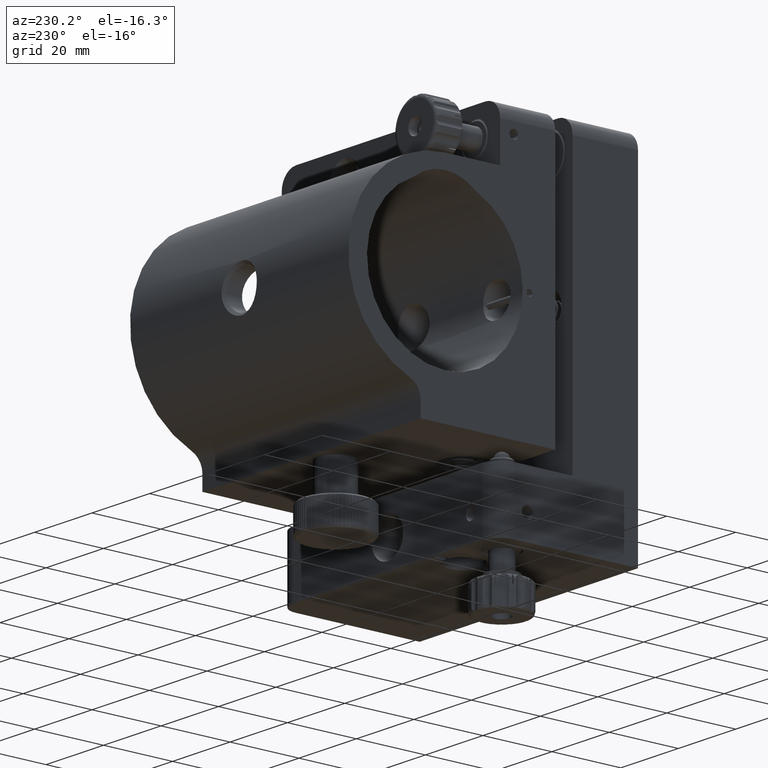
[diagram: clean part render]
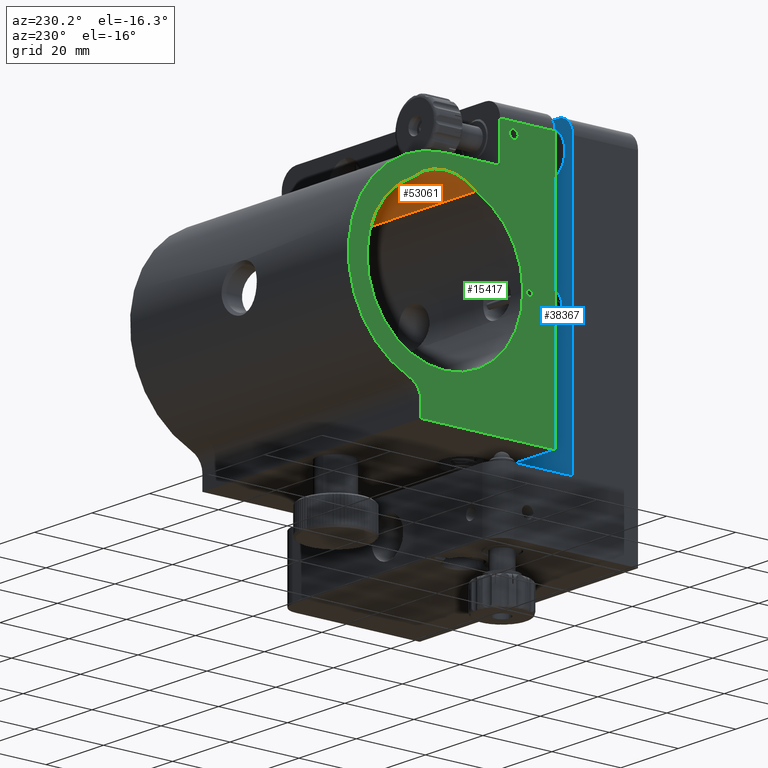
[diagram: same view with three faces highlighted in distinct colors, each labeled with its STEP entity id]
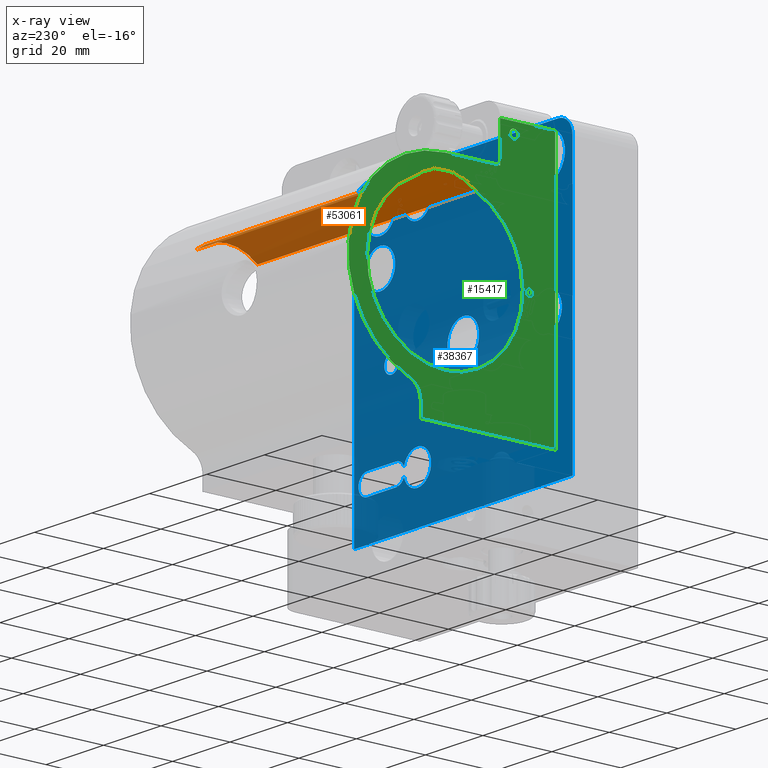
[diagram: x-ray of the same camera — body ghosted, the three highlighted faces saturated]
A machine part, auxiliary view with three faces highlighted in distinct colors.
The next image is the same camera in x-ray (body ghosted, the three faces saturated) — at least one of them is partly hidden behind the body in this view.
Their STEP definitions:

[orange] entity #53061 — the highlighted cylindrical surface (partial cylindrical patch) has radius 14 mm, axis along (1, -0, -0).
#983 = CARTESIAN_POINT ( 'NONE',  ( -250.0000000000000000, 55.99999999999979400, 9.999999999999904100 ) ) ;
#1565 = CARTESIAN_POINT ( 'NONE',  ( -38.00000000000000000, 55.99999999999979400, 9.999999999999904100 ) ) ;
#2195 = CARTESIAN_POINT ( 'NONE',  ( 37.99999999999998600, 47.01694061023731300, 20.73799999999990700 ) ) ;
#2232 = CARTESIAN_POINT ( 'NONE',  ( -38.00000000000000000, 47.01694061023731300, 20.73799999999990700 ) ) ;
#2624 = AXIS2_PLACEMENT_3D ( 'NONE', #983, #31026, #22587 ) ;
#4763 = EDGE_LOOP ( 'NONE', ( #18377, #13733, #22789, #34149 ) ) ;
#7317 = CARTESIAN_POINT ( 'NONE',  ( -250.0000000000000000, 47.01694061023731300, 20.73799999999990700 ) ) ;
#10224 = DIRECTION ( 'NONE',  ( 0.0000000000000000000, 0.0000000000000000000, -1.000000000000000000 ) ) ;
#12890 = EDGE_CURVE ( 'NONE', #17415, #15541, #49353, .T. ) ;
#13123 = FACE_OUTER_BOUND ( 'NONE', #4763, .T. ) ;
#13415 = LINE ( 'NONE', #7317, #52961 ) ;
#13499 = DIRECTION ( 'NONE',  ( 1.000000000000000000, -0.0000000000000000000, -0.0000000000000000000 ) ) ;
#13678 = DIRECTION ( 'NONE',  ( 1.000000000000000000, 0.0000000000000000000, 0.0000000000000000000 ) ) ;
#13733 = ORIENTED_EDGE ( 'NONE', *, *, #47027, .F. ) ;
#15075 = CARTESIAN_POINT ( 'NONE',  ( 37.99999999999998600, 64.98305938976226100, 20.73799999999991100 ) ) ;
#15500 = VERTEX_POINT ( 'NONE', #2232 ) ;
#15541 = VERTEX_POINT ( 'NONE', #15075 ) ;
#17415 = VERTEX_POINT ( 'NONE', #45102 ) ;
#17871 = VECTOR ( 'NONE', #13499, 1000.000000000000000 ) ;
#18377 = ORIENTED_EDGE ( 'NONE', *, *, #27845, .T. ) ;
#22587 = DIRECTION ( 'NONE',  ( 0.0000000000000000000, 0.0000000000000000000, -1.000000000000000000 ) ) ;
#22789 = ORIENTED_EDGE ( 'NONE', *, *, #45143, .F. ) ;
#27845 = EDGE_CURVE ( 'NONE', #15541, #30666, #55019, .T. ) ;
#29134 = AXIS2_PLACEMENT_3D ( 'NONE', #1565, #35743, #10224 ) ;
#30666 = VERTEX_POINT ( 'NONE', #2195 ) ;
#31026 = DIRECTION ( 'NONE',  ( 1.000000000000000000, -0.0000000000000000000, -0.0000000000000000000 ) ) ;
#34149 = ORIENTED_EDGE ( 'NONE', *, *, #12890, .T. ) ;
#34888 = CARTESIAN_POINT ( 'NONE',  ( -250.0000000000000000, 64.98305938976226100, 20.73799999999991100 ) ) ;
#35249 = CARTESIAN_POINT ( 'NONE',  ( 37.99999999999998600, 55.99999999999979400, 9.999999999999904100 ) ) ;
#35280 = CYLINDRICAL_SURFACE ( 'NONE', #2624, 13.99999999999999500 ) ;
#35743 = DIRECTION ( 'NONE',  ( 1.000000000000000000, 0.0000000000000000000, 0.0000000000000000000 ) ) ;
#43667 = DIRECTION ( 'NONE',  ( 0.0000000000000000000, 0.0000000000000000000, -1.000000000000000000 ) ) ;
#45102 = CARTESIAN_POINT ( 'NONE',  ( -38.00000000000000000, 64.98305938976226100, 20.73799999999991100 ) ) ;
#45143 = EDGE_CURVE ( 'NONE', #17415, #15500, #49023, .T. ) ;
#46520 = DIRECTION ( 'NONE',  ( 1.000000000000000000, -0.0000000000000000000, -0.0000000000000000000 ) ) ;
#47027 = EDGE_CURVE ( 'NONE', #15500, #30666, #13415, .T. ) ;
#49023 = CIRCLE ( 'NONE', #29134, 13.99999999999999500 ) ;
#49353 = LINE ( 'NONE', #34888, #17871 ) ;
#52961 = VECTOR ( 'NONE', #46520, 1000.000000000000000 ) ;
#53061 = ADVANCED_FACE ( 'NONE', ( #13123 ), #35280, .F. ) ;
#53588 = AXIS2_PLACEMENT_3D ( 'NONE', #35249, #13678, #43667 ) ;
#55019 = CIRCLE ( 'NONE', #53588, 13.99999999999999500 ) ;

[blue] entity #38367 — the highlighted planar face has unit normal (0, -1, 0).
#1 = ORIENTED_EDGE ( 'NONE', *, *, #52454, .T. ) ;
#153 = EDGE_CURVE ( 'NONE', #41810, #35262, #6286, .T. ) ;
#467 = DIRECTION ( 'NONE',  ( 0.0000000000000000000, 0.0000000000000000000, -1.000000000000000000 ) ) ;
#489 = CIRCLE ( 'NONE', #19934, 5.300000000000002500 ) ;
#613 = EDGE_CURVE ( 'NONE', #53217, #777, #20358, .T. ) ;
#739 = DIRECTION ( 'NONE',  ( 0.0000000000000000000, 1.000000000000000000, -1.662010515905923500E-016 ) ) ;
#777 = VERTEX_POINT ( 'NONE', #11529 ) ;
#1326 = CARTESIAN_POINT ( 'NONE',  ( 25.00000000000000000, 19.00000000000000000, -1.134864539286368100E-014 ) ) ;
#1417 = CARTESIAN_POINT ( 'NONE',  ( -28.99999999999999600, 19.00000000000000700, 29.64999999999999500 ) ) ;
#1643 = EDGE_LOOP ( 'NONE', ( #49699, #48700, #29062, #43007, #31970, #49689, #2984, #42280 ) ) ;
#1961 = DIRECTION ( 'NONE',  ( 0.0000000000000000000, 0.0000000000000000000, 1.000000000000000000 ) ) ;
#2147 = ORIENTED_EDGE ( 'NONE', *, *, #51315, .F. ) ;
#2741 = CARTESIAN_POINT ( 'NONE',  ( 29.00000000000000700, 19.00000000000000700, 41.45435605731786000 ) ) ;
#2984 = ORIENTED_EDGE ( 'NONE', *, *, #40047, .F. ) ;
#3092 = VECTOR ( 'NONE', #37724, 1000.000000000000000 ) ;
#3188 = CARTESIAN_POINT ( 'NONE',  ( 38.00000000000000000, 18.99999999999999600, -40.10000000000000100 ) ) ;
#3213 = CIRCLE ( 'NONE', #44315, 5.299999999999999800 ) ;
#3500 = VERTEX_POINT ( 'NONE', #40408 ) ;
#3893 = DIRECTION ( 'NONE',  ( 0.0000000000000000000, 0.0000000000000000000, -1.000000000000000000 ) ) ;
#4257 = VERTEX_POINT ( 'NONE', #19608 ) ;
#4621 = CARTESIAN_POINT ( 'NONE',  ( 15.99999999999982100, 18.99999999999999600, -26.00000000000011700 ) ) ;
#4635 = DIRECTION ( 'NONE',  ( 0.0000000000000000000, 0.0000000000000000000, -1.000000000000000000 ) ) ;
#5157 = CARTESIAN_POINT ( 'NONE',  ( 38.00000000000000000, 18.99999999999999600, -40.10000000000000100 ) ) ;
#5182 = DIRECTION ( 'NONE',  ( 0.0000000000000000000, 0.0000000000000000000, -1.000000000000000000 ) ) ;
#5273 = EDGE_CURVE ( 'NONE', #21511, #26277, #44255, .T. ) ;
#5341 = DIRECTION ( 'NONE',  ( -0.0000000000000000000, 1.000000000000000000, -1.662010515905923500E-016 ) ) ;
#5508 = CARTESIAN_POINT ( 'NONE',  ( 29.00000000000000700, 19.00000000000000700, 36.00000000000000000 ) ) ;
#6104 = AXIS2_PLACEMENT_3D ( 'NONE', #21625, #25368, #51029 ) ;
#6207 = EDGE_CURVE ( 'NONE', #27308, #27869, #20680, .T. ) ;
#6286 = CIRCLE ( 'NONE', #9754, 4.999999999999997300 ) ;
#6546 = ORIENTED_EDGE ( 'NONE', *, *, #13086, .T. ) ;
#6751 = EDGE_CURVE ( 'NONE', #21018, #32807, #3213, .T. ) ;
#6873 = DIRECTION ( 'NONE',  ( 0.0000000000000000000, 0.0000000000000000000, -1.000000000000000000 ) ) ;
#7184 = CARTESIAN_POINT ( 'NONE',  ( -38.00000000000000000, 18.99999999999999600, -40.10000000000000100 ) ) ;
#7224 = ORIENTED_EDGE ( 'NONE', *, *, #13948, .F. ) ;
#7258 = CARTESIAN_POINT ( 'NONE',  ( -38.00000000000000000, 19.00000000000000700, 38.99999999999997200 ) ) ;
#7432 = DIRECTION ( 'NONE',  ( -0.0000000000000000000, 1.000000000000000000, -1.237614846119006200E-016 ) ) ;
#7461 = DIRECTION ( 'NONE',  ( 0.0000000000000000000, 1.000000000000000000, -1.662010515905923500E-016 ) ) ;
#7691 = EDGE_LOOP ( 'NONE', ( #51715, #45454 ) ) ;
#8007 = CARTESIAN_POINT ( 'NONE',  ( 23.39999999999999900, 18.99999999999999600, -23.00000000000011700 ) ) ;
#8052 = DIRECTION ( 'NONE',  ( 0.0000000000000000000, 1.000000000000000000, -1.662010515905923500E-016 ) ) ;
#8059 = ORIENTED_EDGE ( 'NONE', *, *, #52265, .F. ) ;
#8205 = DIRECTION ( 'NONE',  ( 1.000000000000000000, 0.0000000000000000000, -3.435095992033281000E-016 ) ) ;
#8335 = EDGE_LOOP ( 'NONE', ( #17985, #20875 ) ) ;
#9393 = DIRECTION ( 'NONE',  ( 0.0000000000000000000, 0.0000000000000000000, 1.000000000000000000 ) ) ;
#9489 = DIRECTION ( 'NONE',  ( 0.0000000000000000000, -1.000000000000000000, 1.237614846119006200E-016 ) ) ;
#9754 = AXIS2_PLACEMENT_3D ( 'NONE', #24186, #7432, #6873 ) ;
#10064 = AXIS2_PLACEMENT_3D ( 'NONE', #15412, #28000, #36632 ) ;
#10263 = EDGE_CURVE ( 'NONE', #26277, #21511, #54129, .T. ) ;
#10619 = EDGE_LOOP ( 'NONE', ( #11715, #24751 ) ) ;
#11319 = ORIENTED_EDGE ( 'NONE', *, *, #15669, .T. ) ;
#11518 = DIRECTION ( 'NONE',  ( 0.0000000000000000000, 0.0000000000000000000, 1.000000000000000000 ) ) ;
#11529 = CARTESIAN_POINT ( 'NONE',  ( -15.99999999999975100, 19.00000000000000700, 31.20000000000011700 ) ) ;
#11646 = DIRECTION ( 'NONE',  ( 0.0000000000000000000, 0.0000000000000000000, 1.000000000000000000 ) ) ;
#11668 = CARTESIAN_POINT ( 'NONE',  ( 0.0000000000000000000, 19.00000000000000000, 5.499999999999992000 ) ) ;
#11715 = ORIENTED_EDGE ( 'NONE', *, *, #13426, .F. ) ;
#11791 = CIRCLE ( 'NONE', #33488, 2.499999999999988500 ) ;
#11885 = CIRCLE ( 'NONE', #53978, 4.799999999999998900 ) ;
#11962 = AXIS2_PLACEMENT_3D ( 'NONE', #28953, #37207, #11518 ) ;
#12198 = DIRECTION ( 'NONE',  ( 0.0000000000000000000, 1.000000000000000000, -1.662010515905923500E-016 ) ) ;
#12219 = VECTOR ( 'NONE', #12726, 1000.000000000000000 ) ;
#12352 = FACE_BOUND ( 'NONE', #33936, .T. ) ;
#12355 = CARTESIAN_POINT ( 'NONE',  ( 16.00000000000024900, 19.00000000000000700, 40.79999999999989100 ) ) ;
#12422 = VERTEX_POINT ( 'NONE', #20075 ) ;
#12726 = DIRECTION ( 'NONE',  ( -1.000000000000000000, -0.0000000000000000000, 3.435095992033281000E-016 ) ) ;
#12902 = DIRECTION ( 'NONE',  ( 0.0000000000000000000, -1.237614846119006200E-016, -1.000000000000000000 ) ) ;
#13027 = FACE_BOUND ( 'NONE', #10619, .T. ) ;
#13086 = EDGE_CURVE ( 'NONE', #30221, #41810, #21142, .T. ) ;
#13323 = DIRECTION ( 'NONE',  ( 0.0000000000000000000, 0.0000000000000000000, -1.000000000000000000 ) ) ;
#13426 = EDGE_CURVE ( 'NONE', #27869, #27308, #11791, .T. ) ;
#13672 = ORIENTED_EDGE ( 'NONE', *, *, #10263, .T. ) ;
#13937 = DIRECTION ( 'NONE',  ( -0.0000000000000000000, 1.000000000000000000, -1.662010515905923500E-016 ) ) ;
#13948 = EDGE_CURVE ( 'NONE', #45822, #35262, #23908, .T. ) ;
#14941 = EDGE_CURVE ( 'NONE', #777, #53217, #33270, .T. ) ;
#15412 = CARTESIAN_POINT ( 'NONE',  ( 23.39999999999999900, 18.99999999999999600, -26.00000000000011700 ) ) ;
#15669 = EDGE_CURVE ( 'NONE', #45822, #39390, #53300, .T. ) ;
#15783 = CIRCLE ( 'NONE', #23973, 5.300000000000002500 ) ;
#16068 = AXIS2_PLACEMENT_3D ( 'NONE', #42382, #8052, #33594 ) ;
#16508 = ORIENTED_EDGE ( 'NONE', *, *, #17398, .F. ) ;
#16520 = DIRECTION ( 'NONE',  ( 0.0000000000000000000, -1.000000000000000000, 1.237614846119006200E-016 ) ) ;
#16855 = CARTESIAN_POINT ( 'NONE',  ( 23.39999999999999900, 18.99999999999999600, -26.00000000000011700 ) ) ;
#17048 = FACE_OUTER_BOUND ( 'NONE', #50556, .T. ) ;
#17219 = VECTOR ( 'NONE', #8205, 1000.000000000000000 ) ;
#17398 = EDGE_CURVE ( 'NONE', #37107, #34237, #26415, .T. ) ;
#17985 = ORIENTED_EDGE ( 'NONE', *, *, #39087, .F. ) ;
#18098 = EDGE_LOOP ( 'NONE', ( #39924, #2147 ) ) ;
#18172 = CARTESIAN_POINT ( 'NONE',  ( 33.50000000000000000, 18.99999999999999600, -23.00000000000012100 ) ) ;
#18184 = VERTEX_POINT ( 'NONE', #24065 ) ;
#19009 = DIRECTION ( 'NONE',  ( 0.0000000000000000000, 0.0000000000000000000, 1.000000000000000000 ) ) ;
#19608 = CARTESIAN_POINT ( 'NONE',  ( 16.00000000000024900, 19.00000000000000700, 31.19999999999989600 ) ) ;
#19767 = CIRCLE ( 'NONE', #50427, 2.999999999999999100 ) ;
#19934 = AXIS2_PLACEMENT_3D ( 'NONE', #22055, #39472, #467 ) ;
#20075 = CARTESIAN_POINT ( 'NONE',  ( 23.39999999999999900, 18.99999999999999600, -29.00000000000011700 ) ) ;
#20167 = AXIS2_PLACEMENT_3D ( 'NONE', #50968, #7461, #11646 ) ;
#20358 = CIRCLE ( 'NONE', #33089, 4.799999999999998900 ) ;
#20680 = CIRCLE ( 'NONE', #50047, 2.499999999999988500 ) ;
#20776 = DIRECTION ( 'NONE',  ( 0.0000000000000000000, 0.0000000000000000000, 1.000000000000000000 ) ) ;
#20875 = ORIENTED_EDGE ( 'NONE', *, *, #52888, .F. ) ;
#20968 = AXIS2_PLACEMENT_3D ( 'NONE', #42275, #30122, #34448 ) ;
#21018 = VERTEX_POINT ( 'NONE', #37062 ) ;
#21142 = LINE ( 'NONE', #44524, #23846 ) ;
#21206 = VECTOR ( 'NONE', #27162, 1000.000000000000000 ) ;
#21331 = PLANE ( 'NONE',  #54483 ) ;
#21511 = VERTEX_POINT ( 'NONE', #2741 ) ;
#21625 = CARTESIAN_POINT ( 'NONE',  ( 33.00000000000000000, 19.00000000000000700, 39.00000000000000000 ) ) ;
#21736 = FACE_BOUND ( 'NONE', #54648, .T. ) ;
#21995 = CARTESIAN_POINT ( 'NONE',  ( 33.00000000000000000, 19.00000000000000700, 44.00000000000000000 ) ) ;
#22055 = CARTESIAN_POINT ( 'NONE',  ( 29.00000000000016000, 19.00000000000000400, 22.99999999999979400 ) ) ;
#22765 = CIRCLE ( 'NONE', #31688, 5.299999999999999800 ) ;
#22791 = CIRCLE ( 'NONE', #54323, 4.799999999999998900 ) ;
#23073 = FACE_BOUND ( 'NONE', #26107, .T. ) ;
#23283 = LINE ( 'NONE', #3188, #3092 ) ;
#23637 = CARTESIAN_POINT ( 'NONE',  ( -15.99999999999975100, 19.00000000000000700, 36.00000000000011400 ) ) ;
#23804 = ORIENTED_EDGE ( 'NONE', *, *, #6751, .T. ) ;
#23846 = VECTOR ( 'NONE', #32187, 1000.000000000000000 ) ;
#23908 = LINE ( 'NONE', #48511, #21206 ) ;
#23973 = AXIS2_PLACEMENT_3D ( 'NONE', #30933, #30586, #5182 ) ;
#24065 = CARTESIAN_POINT ( 'NONE',  ( 15.99999999999982100, 18.99999999999999600, -21.20000000000011700 ) ) ;
#24186 = CARTESIAN_POINT ( 'NONE',  ( -33.00000000000000700, 19.00000000000000700, 39.00000000000000000 ) ) ;
#24751 = ORIENTED_EDGE ( 'NONE', *, *, #6207, .F. ) ;
#24775 = AXIS2_PLACEMENT_3D ( 'NONE', #34716, #52261, #13323 ) ;
#25023 = DIRECTION ( 'NONE',  ( 0.0000000000000000000, 0.0000000000000000000, 1.000000000000000000 ) ) ;
#25167 = CARTESIAN_POINT ( 'NONE',  ( -29.00000000000000000, 19.00000000000000000, 5.300000000000199700 ) ) ;
#25368 = DIRECTION ( 'NONE',  ( -0.0000000000000000000, 1.000000000000000000, -1.237614846119006200E-016 ) ) ;
#25494 = CARTESIAN_POINT ( 'NONE',  ( -29.00000000000000000, 19.00000000000000000, 2.001545667367180700E-013 ) ) ;
#25787 = EDGE_CURVE ( 'NONE', #37470, #53261, #28032, .T. ) ;
#25877 = DIRECTION ( 'NONE',  ( 0.0000000000000000000, 1.000000000000000000, -1.662010515905923500E-016 ) ) ;
#25909 = DIRECTION ( 'NONE',  ( 0.0000000000000000000, 0.0000000000000000000, 1.000000000000000000 ) ) ;
#25921 = ORIENTED_EDGE ( 'NONE', *, *, #14941, .F. ) ;
#26066 = DIRECTION ( 'NONE',  ( 0.0000000000000000000, -1.000000000000000000, 1.237614846119006200E-016 ) ) ;
#26107 = EDGE_LOOP ( 'NONE', ( #47413, #23804 ) ) ;
#26199 = DIRECTION ( 'NONE',  ( 0.0000000000000000000, -1.000000000000000000, 1.237614846119006200E-016 ) ) ;
#26277 = VERTEX_POINT ( 'NONE', #45105 ) ;
#26391 = VERTEX_POINT ( 'NONE', #28443 ) ;
#26415 = CIRCLE ( 'NONE', #50148, 5.499999999999994700 ) ;
#27067 = CIRCLE ( 'NONE', #16068, 6.350000000000001400 ) ;
#27140 = CARTESIAN_POINT ( 'NONE',  ( 15.99999999999982100, 18.99999999999999600, -30.80000000000011400 ) ) ;
#27162 = DIRECTION ( 'NONE',  ( -1.000000000000000000, -0.0000000000000000000, -0.0000000000000000000 ) ) ;
#27255 = LINE ( 'NONE', #8007, #17219 ) ;
#27308 = VERTEX_POINT ( 'NONE', #41460 ) ;
#27636 = DIRECTION ( 'NONE',  ( 0.0000000000000000000, 1.000000000000000000, -1.662010515905923500E-016 ) ) ;
#27697 = DIRECTION ( 'NONE',  ( -0.0000000000000000000, 1.000000000000000000, -1.662010515905923500E-016 ) ) ;
#27869 = VERTEX_POINT ( 'NONE', #44219 ) ;
#27948 = DIRECTION ( 'NONE',  ( 0.0000000000000000000, 0.0000000000000000000, 1.000000000000000000 ) ) ;
#27964 = DIRECTION ( 'NONE',  ( 0.0000000000000000000, 0.0000000000000000000, 1.000000000000000000 ) ) ;
#28000 = DIRECTION ( 'NONE',  ( 0.0000000000000000000, 1.000000000000000000, -1.662010515905923500E-016 ) ) ;
#28032 = CIRCLE ( 'NONE', #45300, 4.799999999999998900 ) ;
#28436 = VERTEX_POINT ( 'NONE', #42495 ) ;
#28443 = CARTESIAN_POINT ( 'NONE',  ( 29.00000000000016000, 19.00000000000000400, 17.69999999999979300 ) ) ;
#28451 = FACE_BOUND ( 'NONE', #1643, .T. ) ;
#28702 = VERTEX_POINT ( 'NONE', #31619 ) ;
#28856 = ORIENTED_EDGE ( 'NONE', *, *, #613, .F. ) ;
#28953 = CARTESIAN_POINT ( 'NONE',  ( -15.99999999999975100, 19.00000000000000700, 36.00000000000011400 ) ) ;
#29062 = ORIENTED_EDGE ( 'NONE', *, *, #30083, .F. ) ;
#29808 = FACE_BOUND ( 'NONE', #7691, .T. ) ;
#29976 = CARTESIAN_POINT ( 'NONE',  ( 38.00000000000000000, 18.99999999999999600, -40.10000000000000100 ) ) ;
#30083 = EDGE_CURVE ( 'NONE', #18184, #38708, #22791, .T. ) ;
#30122 = DIRECTION ( 'NONE',  ( 0.0000000000000000000, 1.000000000000000000, -1.662010515905923500E-016 ) ) ;
#30221 = VERTEX_POINT ( 'NONE', #7184 ) ;
#30586 = DIRECTION ( 'NONE',  ( 0.0000000000000000000, -1.000000000000000000, 1.237614846119006200E-016 ) ) ;
#30933 = CARTESIAN_POINT ( 'NONE',  ( 29.00000000000016000, 19.00000000000000400, 22.99999999999979400 ) ) ;
#31295 = CARTESIAN_POINT ( 'NONE',  ( -15.99999999999975100, 19.00000000000000700, 40.80000000000011100 ) ) ;
#31329 = CIRCLE ( 'NONE', #47181, 4.799999999999998900 ) ;
#31619 = CARTESIAN_POINT ( 'NONE',  ( 33.50000000000000000, 18.99999999999999600, -29.00000000000012100 ) ) ;
#31688 = AXIS2_PLACEMENT_3D ( 'NONE', #25494, #26066, #4635 ) ;
#31846 = DIRECTION ( 'NONE',  ( -1.000000000000000000, -0.0000000000000000000, -0.0000000000000000000 ) ) ;
#31970 = ORIENTED_EDGE ( 'NONE', *, *, #25787, .F. ) ;
#32042 = CARTESIAN_POINT ( 'NONE',  ( 0.0000000000000000000, 19.00000000000000000, -2.351468207626111900E-015 ) ) ;
#32187 = DIRECTION ( 'NONE',  ( 0.0000000000000000000, 1.237614846119006200E-016, 1.000000000000000000 ) ) ;
#32290 = EDGE_CURVE ( 'NONE', #41759, #26391, #489, .T. ) ;
#32464 = CARTESIAN_POINT ( 'NONE',  ( 25.00000000000000000, 19.00000000000000000, -1.134864539286368100E-014 ) ) ;
#32752 = EDGE_CURVE ( 'NONE', #3500, #39390, #23283, .T. ) ;
#32807 = VERTEX_POINT ( 'NONE', #25167 ) ;
#33089 = AXIS2_PLACEMENT_3D ( 'NONE', #23637, #53597, #27948 ) ;
#33270 = CIRCLE ( 'NONE', #11962, 4.799999999999998900 ) ;
#33488 = AXIS2_PLACEMENT_3D ( 'NONE', #32464, #53791, #27964 ) ;
#33594 = DIRECTION ( 'NONE',  ( 0.0000000000000000000, 0.0000000000000000000, 1.000000000000000000 ) ) ;
#33936 = EDGE_LOOP ( 'NONE', ( #8059, #16508 ) ) ;
#33942 = VECTOR ( 'NONE', #31846, 1000.000000000000000 ) ;
#34237 = VERTEX_POINT ( 'NONE', #11668 ) ;
#34448 = DIRECTION ( 'NONE',  ( 0.0000000000000000000, 0.0000000000000000000, 1.000000000000000000 ) ) ;
#34716 = CARTESIAN_POINT ( 'NONE',  ( 29.00000000000000700, 19.00000000000000700, 36.00000000000000000 ) ) ;
#34961 = CARTESIAN_POINT ( 'NONE',  ( -33.00000000000000700, 19.00000000000000700, 44.00000000000000000 ) ) ;
#35262 = VERTEX_POINT ( 'NONE', #34961 ) ;
#35288 = CARTESIAN_POINT ( 'NONE',  ( 16.00000000000024900, 19.00000000000000700, 35.99999999999989300 ) ) ;
#35593 = CARTESIAN_POINT ( 'NONE',  ( 0.0000000000000000000, 19.00000000000000000, -2.351468207626111900E-015 ) ) ;
#36117 = EDGE_CURVE ( 'NONE', #26391, #41759, #15783, .T. ) ;
#36618 = ORIENTED_EDGE ( 'NONE', *, *, #153, .T. ) ;
#36632 = DIRECTION ( 'NONE',  ( 0.0000000000000000000, 0.0000000000000000000, 1.000000000000000000 ) ) ;
#37062 = CARTESIAN_POINT ( 'NONE',  ( -29.00000000000000000, 19.00000000000000000, -5.299999999999798200 ) ) ;
#37107 = VERTEX_POINT ( 'NONE', #45485 ) ;
#37126 = VERTEX_POINT ( 'NONE', #49423 ) ;
#37157 = FACE_BOUND ( 'NONE', #8335, .T. ) ;
#37207 = DIRECTION ( 'NONE',  ( 0.0000000000000000000, 1.000000000000000000, -1.662010515905923500E-016 ) ) ;
#37363 = AXIS2_PLACEMENT_3D ( 'NONE', #16855, #46451, #20776 ) ;
#37470 = VERTEX_POINT ( 'NONE', #38930 ) ;
#37724 = DIRECTION ( 'NONE',  ( 0.0000000000000000000, 1.237614846119006200E-016, 1.000000000000000000 ) ) ;
#37795 = CIRCLE ( 'NONE', #37363, 2.999999999999999100 ) ;
#38017 = CARTESIAN_POINT ( 'NONE',  ( 23.39999999999999900, 18.99999999999999600, -29.00000000000011700 ) ) ;
#38054 = ORIENTED_EDGE ( 'NONE', *, *, #5273, .T. ) ;
#38258 = CARTESIAN_POINT ( 'NONE',  ( -29.00000000000000000, 19.00000000000000000, 2.001545667367180700E-013 ) ) ;
#38367 = ADVANCED_FACE ( 'NONE', ( #29808, #23073, #52570, #13027, #12352, #37157, #21736, #51243, #28451, #17048 ), #21331, .F. ) ;
#38708 = VERTEX_POINT ( 'NONE', #53096 ) ;
#38930 = CARTESIAN_POINT ( 'NONE',  ( 20.64864864864853200, 18.99999999999999600, -27.19585356186146500 ) ) ;
#39087 = EDGE_CURVE ( 'NONE', #28436, #53152, #27067, .T. ) ;
#39169 = DIRECTION ( 'NONE',  ( 0.0000000000000000000, 0.0000000000000000000, 1.000000000000000000 ) ) ;
#39390 = VERTEX_POINT ( 'NONE', #47795 ) ;
#39472 = DIRECTION ( 'NONE',  ( 0.0000000000000000000, -1.000000000000000000, 1.237614846119006200E-016 ) ) ;
#39924 = ORIENTED_EDGE ( 'NONE', *, *, #50399, .F. ) ;
#40047 = EDGE_CURVE ( 'NONE', #28702, #12422, #49100, .T. ) ;
#40408 = CARTESIAN_POINT ( 'NONE',  ( 38.00000000000000000, 18.99999999999999600, -40.10000000000000100 ) ) ;
#40732 = AXIS2_PLACEMENT_3D ( 'NONE', #5508, #9489, #48459 ) ;
#41460 = CARTESIAN_POINT ( 'NONE',  ( 25.00000000000000000, 19.00000000000000000, -2.499999999999999600 ) ) ;
#41759 = VERTEX_POINT ( 'NONE', #54154 ) ;
#41810 = VERTEX_POINT ( 'NONE', #7258 ) ;
#41920 = ORIENTED_EDGE ( 'NONE', *, *, #32752, .F. ) ;
#41956 = EDGE_CURVE ( 'NONE', #12422, #37470, #37795, .T. ) ;
#41962 = VERTEX_POINT ( 'NONE', #12355 ) ;
#42275 = CARTESIAN_POINT ( 'NONE',  ( -28.99999999999999600, 19.00000000000000700, 36.00000000000000000 ) ) ;
#42280 = ORIENTED_EDGE ( 'NONE', *, *, #53939, .F. ) ;
#42382 = CARTESIAN_POINT ( 'NONE',  ( -28.99999999999999600, 19.00000000000000700, 36.00000000000000000 ) ) ;
#42495 = CARTESIAN_POINT ( 'NONE',  ( -28.99999999999999600, 19.00000000000000700, 42.35000000000000100 ) ) ;
#43007 = ORIENTED_EDGE ( 'NONE', *, *, #47611, .F. ) ;
#43927 = DIRECTION ( 'NONE',  ( 0.0000000000000000000, 0.0000000000000000000, 1.000000000000000000 ) ) ;
#43981 = LINE ( 'NONE', #5157, #33942 ) ;
#44016 = DIRECTION ( 'NONE',  ( 0.0000000000000000000, 0.0000000000000000000, 1.000000000000000000 ) ) ;
#44219 = CARTESIAN_POINT ( 'NONE',  ( 25.00000000000000000, 19.00000000000000000, 2.499999999999976900 ) ) ;
#44255 = CIRCLE ( 'NONE', #40732, 5.454356057317859600 ) ;
#44315 = AXIS2_PLACEMENT_3D ( 'NONE', #38258, #16520, #3893 ) ;
#44524 = CARTESIAN_POINT ( 'NONE',  ( -38.00000000000000000, 18.99999999999999600, -40.10000000000000100 ) ) ;
#45105 = CARTESIAN_POINT ( 'NONE',  ( 29.00000000000000700, 19.00000000000000700, 30.54564394268213700 ) ) ;
#45300 = AXIS2_PLACEMENT_3D ( 'NONE', #4621, #25877, #39169 ) ;
#45454 = ORIENTED_EDGE ( 'NONE', *, *, #36117, .T. ) ;
#45485 = CARTESIAN_POINT ( 'NONE',  ( 6.735557395310439100E-016, 19.00000000000000000, -5.499999999999997300 ) ) ;
#45822 = VERTEX_POINT ( 'NONE', #21995 ) ;
#45838 = DIRECTION ( 'NONE',  ( 0.0000000000000000000, 1.000000000000000000, -1.662010515905923500E-016 ) ) ;
#46016 = CIRCLE ( 'NONE', #54714, 5.499999999999994700 ) ;
#46029 = CARTESIAN_POINT ( 'NONE',  ( 15.99999999999982100, 18.99999999999999600, -26.00000000000011700 ) ) ;
#46451 = DIRECTION ( 'NONE',  ( 0.0000000000000000000, 1.000000000000000000, -1.662010515905923500E-016 ) ) ;
#47181 = AXIS2_PLACEMENT_3D ( 'NONE', #35288, #739, #9393 ) ;
#47413 = ORIENTED_EDGE ( 'NONE', *, *, #47821, .T. ) ;
#47611 = EDGE_CURVE ( 'NONE', #53261, #18184, #48917, .T. ) ;
#47795 = CARTESIAN_POINT ( 'NONE',  ( 38.00000000000000000, 19.00000000000000700, 38.99999999999997200 ) ) ;
#47821 = EDGE_CURVE ( 'NONE', #32807, #21018, #22765, .T. ) ;
#48459 = DIRECTION ( 'NONE',  ( 0.0000000000000000000, 0.0000000000000000000, -1.000000000000000000 ) ) ;
#48511 = CARTESIAN_POINT ( 'NONE',  ( 38.00000000000000000, 19.00000000000000700, 44.00000000000000000 ) ) ;
#48613 = CARTESIAN_POINT ( 'NONE',  ( 33.50000000000000000, 18.99999999999999600, -26.00000000000012100 ) ) ;
#48700 = ORIENTED_EDGE ( 'NONE', *, *, #55523, .F. ) ;
#48917 = CIRCLE ( 'NONE', #20167, 4.799999999999998900 ) ;
#49100 = LINE ( 'NONE', #38017, #12219 ) ;
#49423 = CARTESIAN_POINT ( 'NONE',  ( 23.39999999999999900, 18.99999999999999600, -23.00000000000011700 ) ) ;
#49689 = ORIENTED_EDGE ( 'NONE', *, *, #41956, .F. ) ;
#49699 = ORIENTED_EDGE ( 'NONE', *, *, #51904, .F. ) ;
#50047 = AXIS2_PLACEMENT_3D ( 'NONE', #1326, #13937, #43927 ) ;
#50148 = AXIS2_PLACEMENT_3D ( 'NONE', #32042, #27697, #1961 ) ;
#50399 = EDGE_CURVE ( 'NONE', #41962, #4257, #11885, .T. ) ;
#50427 = AXIS2_PLACEMENT_3D ( 'NONE', #48613, #27636, #19009 ) ;
#50486 = VERTEX_POINT ( 'NONE', #18172 ) ;
#50556 = EDGE_LOOP ( 'NONE', ( #6546, #36618, #7224, #11319, #41920, #1 ) ) ;
#50968 = CARTESIAN_POINT ( 'NONE',  ( 15.99999999999982100, 18.99999999999999600, -26.00000000000011700 ) ) ;
#51029 = DIRECTION ( 'NONE',  ( 0.0000000000000000000, 0.0000000000000000000, -1.000000000000000000 ) ) ;
#51243 = FACE_BOUND ( 'NONE', #18098, .T. ) ;
#51287 = EDGE_LOOP ( 'NONE', ( #13672, #38054 ) ) ;
#51303 = CIRCLE ( 'NONE', #10064, 2.999999999999999100 ) ;
#51315 = EDGE_CURVE ( 'NONE', #4257, #41962, #31329, .T. ) ;
#51715 = ORIENTED_EDGE ( 'NONE', *, *, #32290, .T. ) ;
#51904 = EDGE_CURVE ( 'NONE', #37126, #50486, #27255, .T. ) ;
#52261 = DIRECTION ( 'NONE',  ( 0.0000000000000000000, -1.000000000000000000, 1.237614846119006200E-016 ) ) ;
#52265 = EDGE_CURVE ( 'NONE', #34237, #37107, #46016, .T. ) ;
#52454 = EDGE_CURVE ( 'NONE', #3500, #30221, #43981, .T. ) ;
#52570 = FACE_BOUND ( 'NONE', #51287, .T. ) ;
#52888 = EDGE_CURVE ( 'NONE', #53152, #28436, #55375, .T. ) ;
#53096 = CARTESIAN_POINT ( 'NONE',  ( 20.64864864864853200, 18.99999999999999600, -24.80414643813876900 ) ) ;
#53152 = VERTEX_POINT ( 'NONE', #1417 ) ;
#53217 = VERTEX_POINT ( 'NONE', #31295 ) ;
#53261 = VERTEX_POINT ( 'NONE', #27140 ) ;
#53300 = CIRCLE ( 'NONE', #6104, 4.999999999999997300 ) ;
#53597 = DIRECTION ( 'NONE',  ( 0.0000000000000000000, 1.000000000000000000, -1.662010515905923500E-016 ) ) ;
#53791 = DIRECTION ( 'NONE',  ( -0.0000000000000000000, 1.000000000000000000, -1.662010515905923500E-016 ) ) ;
#53939 = EDGE_CURVE ( 'NONE', #50486, #28702, #19767, .T. ) ;
#53978 = AXIS2_PLACEMENT_3D ( 'NONE', #55499, #12198, #25909 ) ;
#54129 = CIRCLE ( 'NONE', #24775, 5.454356057317859600 ) ;
#54154 = CARTESIAN_POINT ( 'NONE',  ( 29.00000000000016000, 19.00000000000000400, 28.29999999999979800 ) ) ;
#54323 = AXIS2_PLACEMENT_3D ( 'NONE', #46029, #45838, #25023 ) ;
#54483 = AXIS2_PLACEMENT_3D ( 'NONE', #29976, #26199, #12902 ) ;
#54648 = EDGE_LOOP ( 'NONE', ( #28856, #25921 ) ) ;
#54714 = AXIS2_PLACEMENT_3D ( 'NONE', #35593, #5341, #44016 ) ;
#55375 = CIRCLE ( 'NONE', #20968, 6.350000000000001400 ) ;
#55499 = CARTESIAN_POINT ( 'NONE',  ( 16.00000000000024900, 19.00000000000000700, 35.99999999999989300 ) ) ;
#55523 = EDGE_CURVE ( 'NONE', #38708, #37126, #51303, .T. ) ;

[green] entity #15417 — the highlighted planar face has unit normal (1, 0, 0).
#691 = AXIS2_PLACEMENT_3D ( 'NONE', #55224, #29571, #50914 ) ;
#966 = ORIENTED_EDGE ( 'NONE', *, *, #39321, .F. ) ;
#1181 = CARTESIAN_POINT ( 'NONE',  ( -37.99999999999999300, 55.99999999999979400, 27.99999999999990400 ) ) ;
#1384 = CARTESIAN_POINT ( 'NONE',  ( -37.99999999999999300, 62.99999999999979400, -35.00000000000032000 ) ) ;
#1449 = VECTOR ( 'NONE', #3815, 1000.000000000000000 ) ;
#1565 = CARTESIAN_POINT ( 'NONE',  ( -38.00000000000000000, 55.99999999999979400, 9.999999999999904100 ) ) ;
#2232 = CARTESIAN_POINT ( 'NONE',  ( -38.00000000000000000, 47.01694061023731300, 20.73799999999990700 ) ) ;
#3102 = CIRCLE ( 'NONE', #4454, 1.250000000000001100 ) ;
#3158 = CARTESIAN_POINT ( 'NONE',  ( -37.99999999999999300, 23.99999999999979400, -35.00000000000009900 ) ) ;
#3226 = AXIS2_PLACEMENT_3D ( 'NONE', #19157, #18971, #6167 ) ;
#3815 = DIRECTION ( 'NONE',  ( 0.0000000000000000000, 0.0000000000000000000, 1.000000000000000000 ) ) ;
#4166 = ORIENTED_EDGE ( 'NONE', *, *, #45143, .T. ) ;
#4178 = CARTESIAN_POINT ( 'NONE',  ( -37.99999999999999300, 31.50000000000000700, -0.9000000000000898400 ) ) ;
#4188 = DIRECTION ( 'NONE',  ( 0.0000000000000000000, 0.0000000000000000000, 1.000000000000000000 ) ) ;
#4454 = AXIS2_PLACEMENT_3D ( 'NONE', #25329, #16896, #30042 ) ;
#4575 = DIRECTION ( 'NONE',  ( -1.000000000000000000, -0.0000000000000000000, -0.0000000000000000000 ) ) ;
#5272 = EDGE_CURVE ( 'NONE', #45302, #18093, #30885, .T. ) ;
#5818 = DIRECTION ( 'NONE',  ( 0.0000000000000000000, 0.0000000000000000000, -1.000000000000000000 ) ) ;
#6089 = CARTESIAN_POINT ( 'NONE',  ( -37.99999999999999300, 67.99999999999988600, -30.74085229787885600 ) ) ;
#6167 = DIRECTION ( 'NONE',  ( 0.0000000000000000000, 0.0000000000000000000, -1.000000000000000000 ) ) ;
#7198 = VECTOR ( 'NONE', #27295, 1000.000000000000000 ) ;
#7555 = EDGE_CURVE ( 'NONE', #49803, #53175, #18659, .T. ) ;
#7633 = EDGE_CURVE ( 'NONE', #21830, #17199, #35464, .T. ) ;
#7677 = ORIENTED_EDGE ( 'NONE', *, *, #50133, .F. ) ;
#9024 = DIRECTION ( 'NONE',  ( -0.0000000000000000000, -2.898525301632133300E-015, -1.000000000000000000 ) ) ;
#9688 = ORIENTED_EDGE ( 'NONE', *, *, #40889, .T. ) ;
#10224 = DIRECTION ( 'NONE',  ( 0.0000000000000000000, 0.0000000000000000000, -1.000000000000000000 ) ) ;
#10426 = CARTESIAN_POINT ( 'NONE',  ( -37.99999999999999300, 55.99999999999979400, -9.584347204771859200E-014 ) ) ;
#11087 = FACE_BOUND ( 'NONE', #23796, .T. ) ;
#12756 = VECTOR ( 'NONE', #14009, 1000.000000000000000 ) ;
#12939 = VERTEX_POINT ( 'NONE', #30397 ) ;
#13091 = CARTESIAN_POINT ( 'NONE',  ( -38.00000000000000000, 55.99999999999979400, -9.584347204771859200E-014 ) ) ;
#13324 = ORIENTED_EDGE ( 'NONE', *, *, #34465, .F. ) ;
#13352 = DIRECTION ( 'NONE',  ( 1.000000000000000000, 0.0000000000000000000, 0.0000000000000000000 ) ) ;
#14009 = DIRECTION ( 'NONE',  ( -0.0000000000000000000, 1.000000000000000000, -0.0000000000000000000 ) ) ;
#14181 = DIRECTION ( 'NONE',  ( 1.000000000000000000, 0.0000000000000000000, 0.0000000000000000000 ) ) ;
#14196 = AXIS2_PLACEMENT_3D ( 'NONE', #10426, #14181, #52583 ) ;
#15235 = CARTESIAN_POINT ( 'NONE',  ( -37.99999999999999300, 40.00000000000002100, 38.99999999999990100 ) ) ;
#15417 = ADVANCED_FACE ( 'NONE', ( #45284, #43957, #11087, #53991 ), #24030, .F. ) ;
#15500 = VERTEX_POINT ( 'NONE', #2232 ) ;
#16121 = CARTESIAN_POINT ( 'NONE',  ( -37.99999999999999300, 55.99999999999979400, 27.99999999999990400 ) ) ;
#16222 = LINE ( 'NONE', #38754, #1449 ) ;
#16896 = DIRECTION ( 'NONE',  ( -1.000000000000000000, -0.0000000000000000000, -0.0000000000000000000 ) ) ;
#17046 = ORIENTED_EDGE ( 'NONE', *, *, #36634, .F. ) ;
#17199 = VERTEX_POINT ( 'NONE', #1181 ) ;
#17415 = VERTEX_POINT ( 'NONE', #45102 ) ;
#17476 = DIRECTION ( 'NONE',  ( 0.0000000000000000000, 0.0000000000000000000, -1.000000000000000000 ) ) ;
#18093 = VERTEX_POINT ( 'NONE', #15235 ) ;
#18441 = ORIENTED_EDGE ( 'NONE', *, *, #44013, .F. ) ;
#18659 = LINE ( 'NONE', #1384, #7198 ) ;
#18971 = DIRECTION ( 'NONE',  ( 1.000000000000000000, 0.0000000000000000000, 0.0000000000000000000 ) ) ;
#19157 = CARTESIAN_POINT ( 'NONE',  ( -37.99999999999999300, 55.99999999999979400, -9.584347204771859200E-014 ) ) ;
#19359 = DIRECTION ( 'NONE',  ( 0.0000000000000000000, 0.0000000000000000000, 1.000000000000000000 ) ) ;
#21408 = CARTESIAN_POINT ( 'NONE',  ( -38.00000000000000000, 55.99999999999979400, -22.60000000000009700 ) ) ;
#21590 = CARTESIAN_POINT ( 'NONE',  ( -38.00000000000000000, 55.99999999999979400, -9.584347204771859200E-014 ) ) ;
#21597 = VERTEX_POINT ( 'NONE', #24725 ) ;
#21830 = VERTEX_POINT ( 'NONE', #26046 ) ;
#21962 = CARTESIAN_POINT ( 'NONE',  ( -37.99999999999999300, 24.00000000000000700, 38.99999999999990800 ) ) ;
#22435 = VERTEX_POINT ( 'NONE', #21408 ) ;
#22465 = EDGE_CURVE ( 'NONE', #15500, #22435, #26173, .T. ) ;
#23796 = EDGE_LOOP ( 'NONE', ( #31022, #7677 ) ) ;
#24030 = PLANE ( 'NONE',  #3226 ) ;
#24534 = ORIENTED_EDGE ( 'NONE', *, *, #43889, .F. ) ;
#24637 = EDGE_CURVE ( 'NONE', #43930, #33726, #29427, .T. ) ;
#24725 = CARTESIAN_POINT ( 'NONE',  ( -37.99999999999999300, 36.00000000000000700, 34.74999999999990800 ) ) ;
#25148 = LINE ( 'NONE', #34859, #37900 ) ;
#25329 = CARTESIAN_POINT ( 'NONE',  ( -37.99999999999999300, 36.00000000000000700, 35.99999999999990800 ) ) ;
#25970 = CARTESIAN_POINT ( 'NONE',  ( -37.99999999999999300, 62.99999999999979400, -35.00000000000032000 ) ) ;
#26046 = CARTESIAN_POINT ( 'NONE',  ( -37.99999999999999300, 66.18181818181804500, -26.08314740426086300 ) ) ;
#26173 = CIRCLE ( 'NONE', #42354, 22.59999999999999800 ) ;
#27295 = DIRECTION ( 'NONE',  ( 0.0000000000000000000, 1.967999199827424600E-014, 1.000000000000000000 ) ) ;
#27525 = VERTEX_POINT ( 'NONE', #3158 ) ;
#28835 = LINE ( 'NONE', #16121, #38909 ) ;
#29134 = AXIS2_PLACEMENT_3D ( 'NONE', #1565, #35743, #10224 ) ;
#29427 = CIRCLE ( 'NONE', #691, 0.9000000000000010200 ) ;
#29571 = DIRECTION ( 'NONE',  ( -1.000000000000000000, 0.0000000000000000000, 0.0000000000000000000 ) ) ;
#30042 = DIRECTION ( 'NONE',  ( 0.0000000000000000000, 0.0000000000000000000, 1.000000000000000000 ) ) ;
#30044 = CIRCLE ( 'NONE', #38587, 0.9000000000000010200 ) ;
#30397 = CARTESIAN_POINT ( 'NONE',  ( -37.99999999999999300, 36.00000000000000700, 37.24999999999990800 ) ) ;
#30554 = AXIS2_PLACEMENT_3D ( 'NONE', #46783, #4575, #4188 ) ;
#30718 = CARTESIAN_POINT ( 'NONE',  ( -37.99999999999999300, 55.99999999999979400, 38.99999999999990100 ) ) ;
#30885 = LINE ( 'NONE', #30718, #12756 ) ;
#31022 = ORIENTED_EDGE ( 'NONE', *, *, #24637, .F. ) ;
#31082 = DIRECTION ( 'NONE',  ( -0.0000000000000000000, 1.000000000000000000, -5.693451408334136400E-015 ) ) ;
#32995 = AXIS2_PLACEMENT_3D ( 'NONE', #13091, #47383, #5818 ) ;
#33726 = VERTEX_POINT ( 'NONE', #4178 ) ;
#34089 = AXIS2_PLACEMENT_3D ( 'NONE', #6089, #53180, #44380 ) ;
#34465 = EDGE_CURVE ( 'NONE', #12939, #21597, #3102, .T. ) ;
#34744 = CARTESIAN_POINT ( 'NONE',  ( -37.99999999999999300, 23.99999999999979400, -35.00000000000009900 ) ) ;
#34859 = CARTESIAN_POINT ( 'NONE',  ( -37.99999999999999300, 62.99999999999979400, -35.00000000000032000 ) ) ;
#34906 = EDGE_LOOP ( 'NONE', ( #966, #41748, #18441, #37245, #54014, #9688, #42561, #17046 ) ) ;
#35464 = CIRCLE ( 'NONE', #14196, 27.99999999999999600 ) ;
#35743 = DIRECTION ( 'NONE',  ( 1.000000000000000000, 0.0000000000000000000, 0.0000000000000000000 ) ) ;
#36634 = EDGE_CURVE ( 'NONE', #27525, #49803, #25148, .T. ) ;
#36968 = CARTESIAN_POINT ( 'NONE',  ( -37.99999999999999300, 31.50000000000000700, -8.875290563610021400E-014 ) ) ;
#37203 = VERTEX_POINT ( 'NONE', #46775 ) ;
#37245 = ORIENTED_EDGE ( 'NONE', *, *, #47594, .F. ) ;
#37900 = VECTOR ( 'NONE', #31082, 1000.000000000000000 ) ;
#38587 = AXIS2_PLACEMENT_3D ( 'NONE', #36968, #40360, #19359 ) ;
#38754 = CARTESIAN_POINT ( 'NONE',  ( -37.99999999999999300, 40.00000000000002100, 27.99999999999990400 ) ) ;
#38909 = VECTOR ( 'NONE', #54906, 1000.000000000000000 ) ;
#39321 = EDGE_CURVE ( 'NONE', #45302, #27525, #54493, .T. ) ;
#39471 = ORIENTED_EDGE ( 'NONE', *, *, #40067, .T. ) ;
#39555 = EDGE_LOOP ( 'NONE', ( #42645, #39471, #4166 ) ) ;
#40067 = EDGE_CURVE ( 'NONE', #22435, #17415, #45076, .T. ) ;
#40360 = DIRECTION ( 'NONE',  ( -1.000000000000000000, 0.0000000000000000000, 0.0000000000000000000 ) ) ;
#40889 = EDGE_CURVE ( 'NONE', #21830, #53175, #55320, .T. ) ;
#41748 = ORIENTED_EDGE ( 'NONE', *, *, #5272, .T. ) ;
#42354 = AXIS2_PLACEMENT_3D ( 'NONE', #21590, #13352, #17476 ) ;
#42561 = ORIENTED_EDGE ( 'NONE', *, *, #7555, .F. ) ;
#42645 = ORIENTED_EDGE ( 'NONE', *, *, #22465, .T. ) ;
#43889 = EDGE_CURVE ( 'NONE', #21597, #12939, #51791, .T. ) ;
#43930 = VERTEX_POINT ( 'NONE', #51676 ) ;
#43957 = FACE_BOUND ( 'NONE', #46908, .T. ) ;
#44013 = EDGE_CURVE ( 'NONE', #37203, #18093, #16222, .T. ) ;
#44201 = CARTESIAN_POINT ( 'NONE',  ( -37.99999999999999300, 62.99999999999987200, -30.74085229787876000 ) ) ;
#44380 = DIRECTION ( 'NONE',  ( 0.0000000000000000000, 0.0000000000000000000, -1.000000000000000000 ) ) ;
#45076 = CIRCLE ( 'NONE', #32995, 22.59999999999999800 ) ;
#45102 = CARTESIAN_POINT ( 'NONE',  ( -38.00000000000000000, 64.98305938976226100, 20.73799999999991100 ) ) ;
#45143 = EDGE_CURVE ( 'NONE', #17415, #15500, #49023, .T. ) ;
#45284 = FACE_BOUND ( 'NONE', #39555, .T. ) ;
#45302 = VERTEX_POINT ( 'NONE', #21962 ) ;
#46775 = CARTESIAN_POINT ( 'NONE',  ( -37.99999999999999300, 40.00000000000002100, 27.99999999999990400 ) ) ;
#46783 = CARTESIAN_POINT ( 'NONE',  ( -37.99999999999999300, 36.00000000000000700, 35.99999999999990800 ) ) ;
#46908 = EDGE_LOOP ( 'NONE', ( #13324, #24534 ) ) ;
#47383 = DIRECTION ( 'NONE',  ( 1.000000000000000000, 0.0000000000000000000, 0.0000000000000000000 ) ) ;
#47594 = EDGE_CURVE ( 'NONE', #17199, #37203, #28835, .T. ) ;
#47819 = VECTOR ( 'NONE', #9024, 1000.000000000000000 ) ;
#49023 = CIRCLE ( 'NONE', #29134, 13.99999999999999500 ) ;
#49803 = VERTEX_POINT ( 'NONE', #25970 ) ;
#50133 = EDGE_CURVE ( 'NONE', #33726, #43930, #30044, .T. ) ;
#50914 = DIRECTION ( 'NONE',  ( 0.0000000000000000000, 0.0000000000000000000, 1.000000000000000000 ) ) ;
#51676 = CARTESIAN_POINT ( 'NONE',  ( -37.99999999999999300, 31.50000000000000700, 0.8999999999999123100 ) ) ;
#51791 = CIRCLE ( 'NONE', #30554, 1.250000000000001100 ) ;
#52583 = DIRECTION ( 'NONE',  ( 0.0000000000000000000, 0.0000000000000000000, -1.000000000000000000 ) ) ;
#53175 = VERTEX_POINT ( 'NONE', #44201 ) ;
#53180 = DIRECTION ( 'NONE',  ( 1.000000000000000000, 0.0000000000000000000, 0.0000000000000000000 ) ) ;
#53991 = FACE_OUTER_BOUND ( 'NONE', #34906, .T. ) ;
#54014 = ORIENTED_EDGE ( 'NONE', *, *, #7633, .F. ) ;
#54493 = LINE ( 'NONE', #34744, #47819 ) ;
#54906 = DIRECTION ( 'NONE',  ( 0.0000000000000000000, -1.000000000000000000, 0.0000000000000000000 ) ) ;
#55224 = CARTESIAN_POINT ( 'NONE',  ( -37.99999999999999300, 31.50000000000000700, -8.875290563610021400E-014 ) ) ;
#55320 = CIRCLE ( 'NONE', #34089, 5.000000000000000900 ) ;